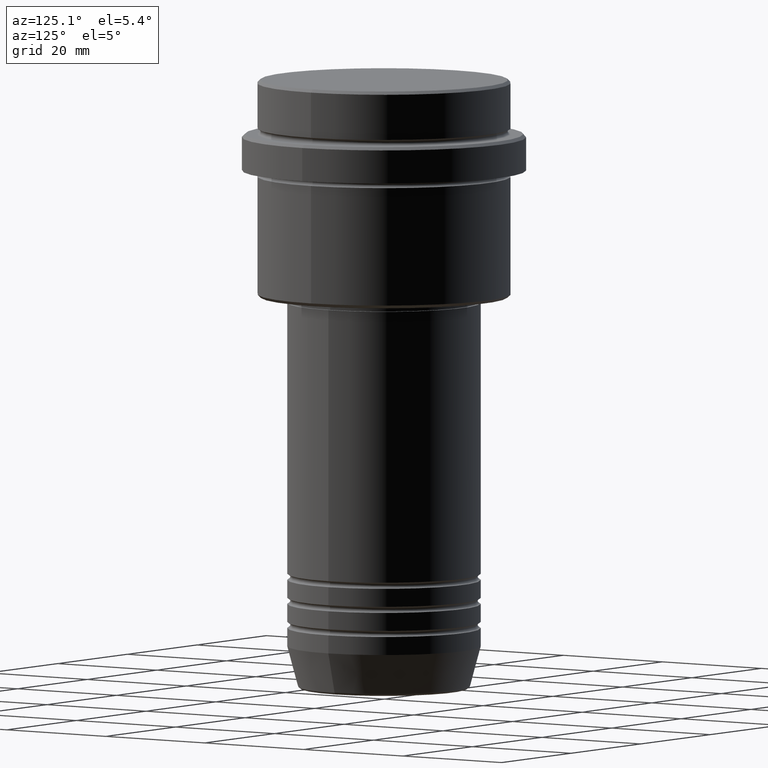
[diagram: clean part render]
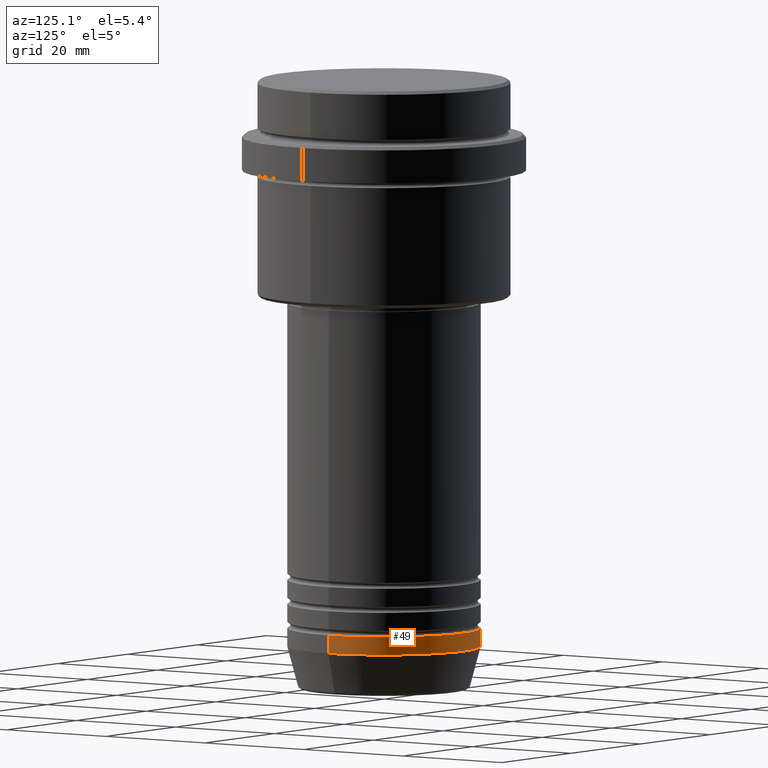
[diagram: same view with one face highlighted and labeled with its STEP entity id]
A machine part, auxiliary view. The second image highlights one B-rep face of the part: STEP entity #49.
In plain terms, the highlighted cylindrical surface (partial cylindrical patch) has radius 16 mm, axis along (-0, -0, 1).
Its self-contained STEP definition (entity closure, byte-faithful):
#5 = EDGE_CURVE ( 'NONE', #611, #848, #437, .T. ) ;
#49 = ADVANCED_FACE ( 'NONE', ( #1342 ), #826, .T. ) ;
#135 = EDGE_LOOP ( 'NONE', ( #738, #1275, #875, #461 ) ) ;
#234 = AXIS2_PLACEMENT_3D ( 'NONE', #481, #827, #1237 ) ;
#260 = CIRCLE ( 'NONE', #234, 16.00000000000000000 ) ;
#278 = CARTESIAN_POINT ( 'NONE',  ( -16.00000000000000000, 1.959434878635765131E-15, -94.00000000000000000 ) ) ;
#336 = CARTESIAN_POINT ( 'NONE',  ( -16.00000000000000000, 1.959434878635765131E-15, -91.00000000000000000 ) ) ;
#370 = CARTESIAN_POINT ( 'NONE',  ( 0.000000000000000000, 0.000000000000000000, -94.00000000000000000 ) ) ;
#380 = DIRECTION ( 'NONE',  ( -0.000000000000000000, -0.000000000000000000, 1.000000000000000000 ) ) ;
#411 = CARTESIAN_POINT ( 'NONE',  ( 16.00000000000000000, 0.000000000000000000, -91.00000000000000000 ) ) ;
#423 = CARTESIAN_POINT ( 'NONE',  ( 16.00000000000000000, 0.000000000000000000, 0.000000000000000000 ) ) ;
#437 = LINE ( 'NONE', #664, #1003 ) ;
#461 = ORIENTED_EDGE ( 'NONE', *, *, #1146, .F. ) ;
#463 = CARTESIAN_POINT ( 'NONE',  ( 0.000000000000000000, 0.000000000000000000, 0.000000000000000000 ) ) ;
#477 = CARTESIAN_POINT ( 'NONE',  ( 16.00000000000000000, 0.000000000000000000, -94.00000000000000000 ) ) ;
#481 = CARTESIAN_POINT ( 'NONE',  ( 0.000000000000000000, 0.000000000000000000, -91.00000000000000000 ) ) ;
#490 = EDGE_CURVE ( 'NONE', #976, #611, #980, .T. ) ;
#611 = VERTEX_POINT ( 'NONE', #278 ) ;
#623 = DIRECTION ( 'NONE',  ( -0.000000000000000000, -0.000000000000000000, 1.000000000000000000 ) ) ;
#664 = CARTESIAN_POINT ( 'NONE',  ( -16.00000000000000000, 1.959434878635765131E-15, 0.000000000000000000 ) ) ;
#674 = AXIS2_PLACEMENT_3D ( 'NONE', #370, #380, #1258 ) ;
#694 = VERTEX_POINT ( 'NONE', #411 ) ;
#697 = AXIS2_PLACEMENT_3D ( 'NONE', #463, #1346, #795 ) ;
#738 = ORIENTED_EDGE ( 'NONE', *, *, #490, .T. ) ;
#795 = DIRECTION ( 'NONE',  ( 1.000000000000000000, 0.000000000000000000, 0.000000000000000000 ) ) ;
#823 = VECTOR ( 'NONE', #623, 1000.000000000000000 ) ;
#826 = CYLINDRICAL_SURFACE ( 'NONE', #697, 16.00000000000000000 ) ;
#827 = DIRECTION ( 'NONE',  ( -0.000000000000000000, -0.000000000000000000, 1.000000000000000000 ) ) ;
#848 = VERTEX_POINT ( 'NONE', #336 ) ;
#875 = ORIENTED_EDGE ( 'NONE', *, *, #1349, .F. ) ;
#976 = VERTEX_POINT ( 'NONE', #477 ) ;
#980 = CIRCLE ( 'NONE', #674, 16.00000000000000000 ) ;
#1003 = VECTOR ( 'NONE', #1106, 1000.000000000000000 ) ;
#1076 = LINE ( 'NONE', #423, #823 ) ;
#1106 = DIRECTION ( 'NONE',  ( -0.000000000000000000, -0.000000000000000000, 1.000000000000000000 ) ) ;
#1146 = EDGE_CURVE ( 'NONE', #976, #694, #1076, .T. ) ;
#1237 = DIRECTION ( 'NONE',  ( 1.000000000000000000, 0.000000000000000000, 0.000000000000000000 ) ) ;
#1258 = DIRECTION ( 'NONE',  ( 1.000000000000000000, 0.000000000000000000, 0.000000000000000000 ) ) ;
#1275 = ORIENTED_EDGE ( 'NONE', *, *, #5, .T. ) ;
#1342 = FACE_OUTER_BOUND ( 'NONE', #135, .T. ) ;
#1346 = DIRECTION ( 'NONE',  ( -0.000000000000000000, -0.000000000000000000, 1.000000000000000000 ) ) ;
#1349 = EDGE_CURVE ( 'NONE', #694, #848, #260, .T. ) ;